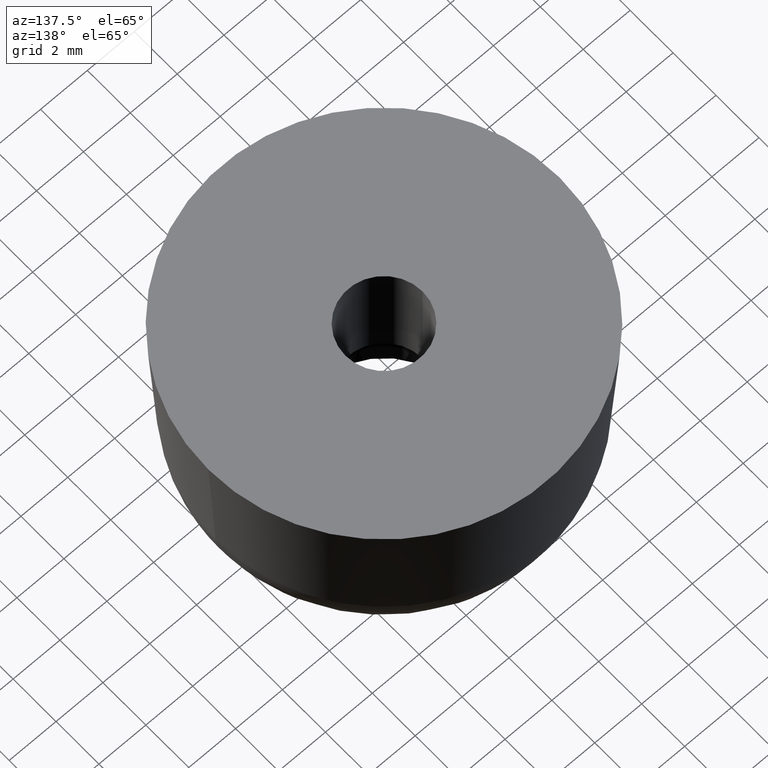
[diagram: clean part render]
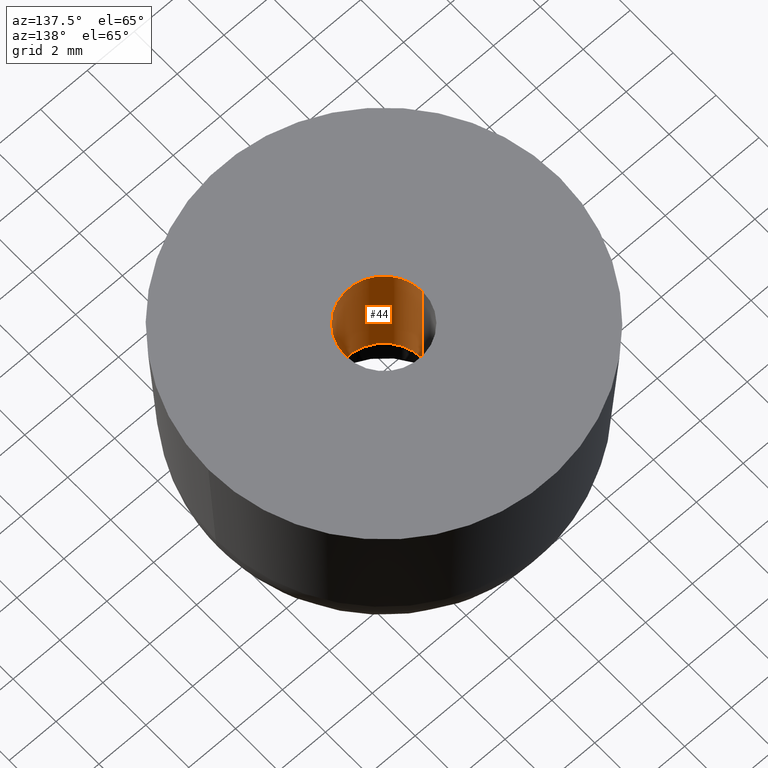
[diagram: same view with one face highlighted and labeled with its STEP entity id]
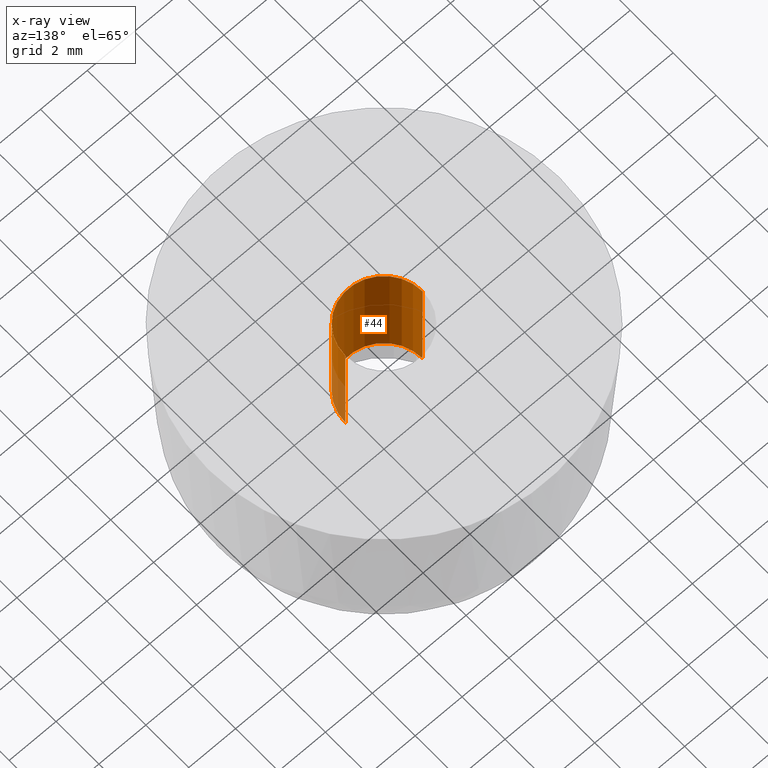
[diagram: x-ray of the same camera — body ghosted, the highlighted face saturated]
A machine part, auxiliary view. The second image highlights one B-rep face of the part: STEP entity #44.
The next image is the same camera in x-ray: the body ghosted, the highlighted face saturated — about 8% of this face is hidden behind the body in this view.
In plain terms, the highlighted cylindrical surface (partial cylindrical patch) has radius 1.65 mm, axis along (0, -0, 1).
Its self-contained STEP definition (entity closure, byte-faithful):
#44=ADVANCED_FACE('',(#95),#94,.F.);
#94=CYLINDRICAL_SURFACE('',#190,1.65000000000E+00);
#95=FACE_OUTER_BOUND('',#191,.T.);
#187=CARTESIAN_POINT('',(1.06581410364E-14,0.00000000000E+00,0.00000000000E+00));
#188=DIRECTION('',(0.00000000000E+00,-0.00000000000E+00,1.00000000000E+00));
#189=DIRECTION('',(1.00000000000E+00,-0.00000000000E+00,-0.00000000000E+00));
#190=AXIS2_PLACEMENT_3D('',#187,#188,#189);
#191=EDGE_LOOP('',(#292,#293,#294,#295));
#292=ORIENTED_EDGE('',*,*,#323,.F.);
#293=ORIENTED_EDGE('',*,*,#332,.F.);
#294=ORIENTED_EDGE('',*,*,#326,.T.);
#295=ORIENTED_EDGE('',*,*,#333,.T.);
#323=EDGE_CURVE('',#357,#356,#364,.T.);
#326=EDGE_CURVE('',#384,#385,#386,.T.);
#332=EDGE_CURVE('',#384,#357,#426,.T.);
#333=EDGE_CURVE('',#385,#356,#432,.T.);
#356=VERTEX_POINT('',#498);
#357=VERTEX_POINT('',#499);
#364=CIRCLE('',#507,1.65000000000E+00);
#384=VERTEX_POINT('',#518);
#385=VERTEX_POINT('',#519);
#386=CIRCLE('',#523,1.65000000000E+00);
#426=(BOUNDED_CURVE() B_SPLINE_CURVE(1,(#548,#549),.UNSPECIFIED.,.F.,.F.) B_SPLINE_CURVE_WITH_KNOTS((2,2),(8.33333383004E-02,9.16666664635E-01),.UNSPECIFIED.) CURVE() GEOMETRIC_REPRESENTATION_ITEM() RATIONAL_B_SPLINE_CURVE((1.00000000000E+00,1.00000000000E+00)) REPRESENTATION_ITEM('') );
#432=(BOUNDED_CURVE() B_SPLINE_CURVE(1,(#550,#551),.UNSPECIFIED.,.F.,.F.) B_SPLINE_CURVE_WITH_KNOTS((2,2),(8.33333333333E-02,9.16666666667E-01),.UNSPECIFIED.) CURVE() GEOMETRIC_REPRESENTATION_ITEM() RATIONAL_B_SPLINE_CURVE((7.50000000000E-01,7.50000000000E-01)) REPRESENTATION_ITEM('') );
#498=CARTESIAN_POINT('',(-1.65000000000E+00,0.00000000000E+00,4.03795809277E-25));
#499=CARTESIAN_POINT('',(1.65000000000E+00,7.40148683083E-17,4.03795809277E-25));
#504=CARTESIAN_POINT('',(1.06581410364E-14,0.00000000000E+00,4.03795809277E-25));
#505=DIRECTION('',(-0.00000000000E+00,0.00000000000E+00,-1.00000000000E+00));
#506=DIRECTION('',(-1.00000000000E+00,-1.22460635382E-16,0.00000000000E+00));
#507=AXIS2_PLACEMENT_3D('',#504,#505,#506);
#518=CARTESIAN_POINT('',(1.65000000000E+00,7.40148683083E-17,-5.00000000000E+00));
#519=CARTESIAN_POINT('',(-1.65000000000E+00,0.00000000000E+00,-5.00000000000E+00));
#520=CARTESIAN_POINT('',(1.06581410364E-14,0.00000000000E+00,-5.00000000000E+00));
#521=DIRECTION('',(-0.00000000000E+00,0.00000000000E+00,-1.00000000000E+00));
#522=DIRECTION('',(-1.00000000000E+00,-1.22460635382E-16,0.00000000000E+00));
#523=AXIS2_PLACEMENT_3D('',#520,#521,#522);
#548=CARTESIAN_POINT('',(1.65000000000E+00,0.00000000000E+00,-4.99999997020E+00));
#549=CARTESIAN_POINT('',(1.65000000000E+00,0.00000000000E+00,-1.21924036423E-08));
#550=CARTESIAN_POINT('',(-1.65000000000E+00,0.00000000000E+00,-5.00000000000E+00));
#551=CARTESIAN_POINT('',(-1.65000000000E+00,0.00000000000E+00,-7.40148683083E-17));